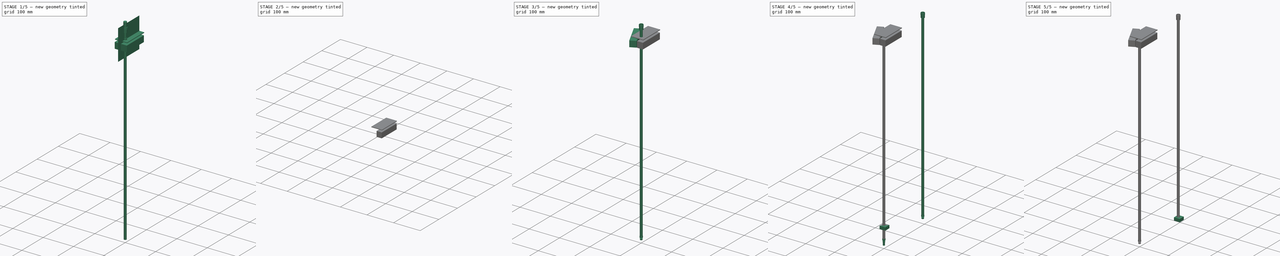
[diagram: build sequence overview — one tinted view per stage of 5, left to right]
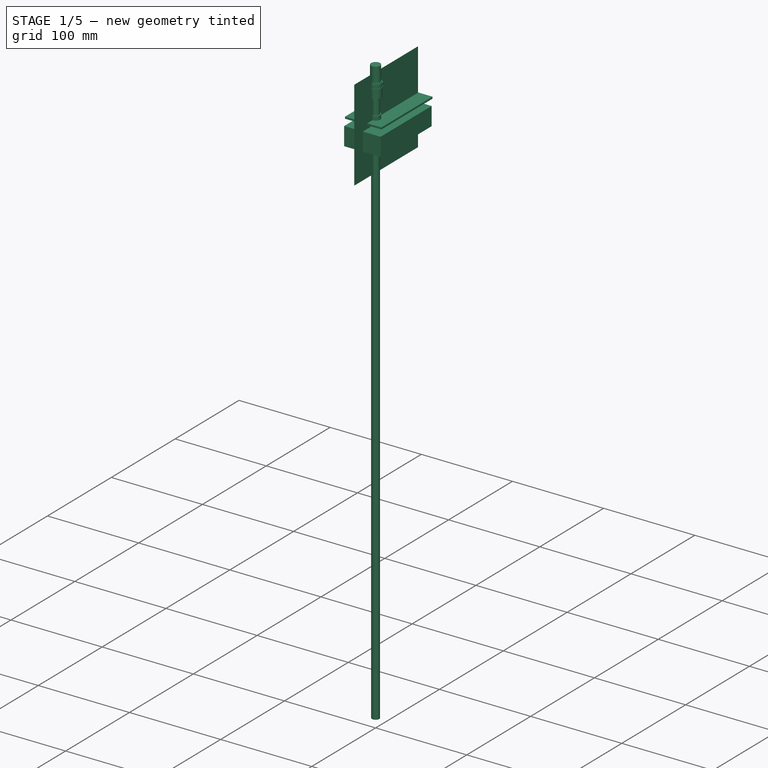
[diagram: stage 1 of 5 — iso view after this stage's code; geometry added in this stage tinted green]
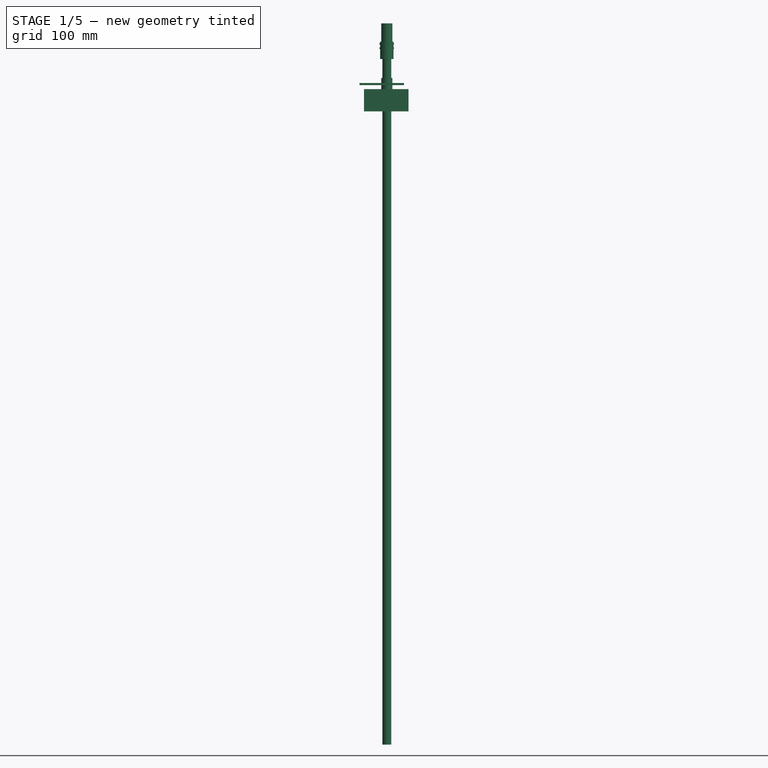
[diagram: stage 1 of 5 — front view after this stage's code; geometry added in this stage tinted green]
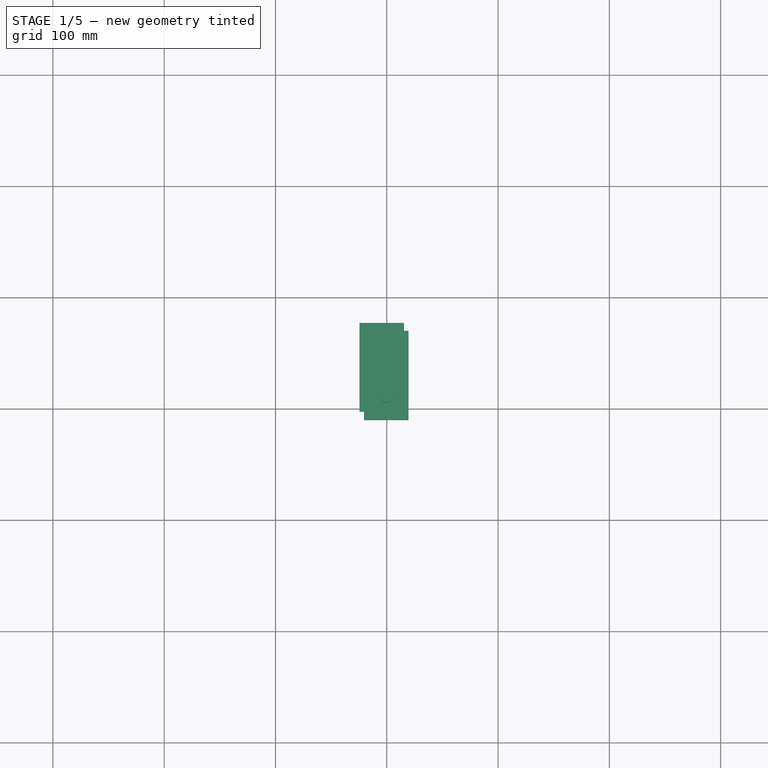
[diagram: stage 1 of 5 — top view after this stage's code; geometry added in this stage tinted green]
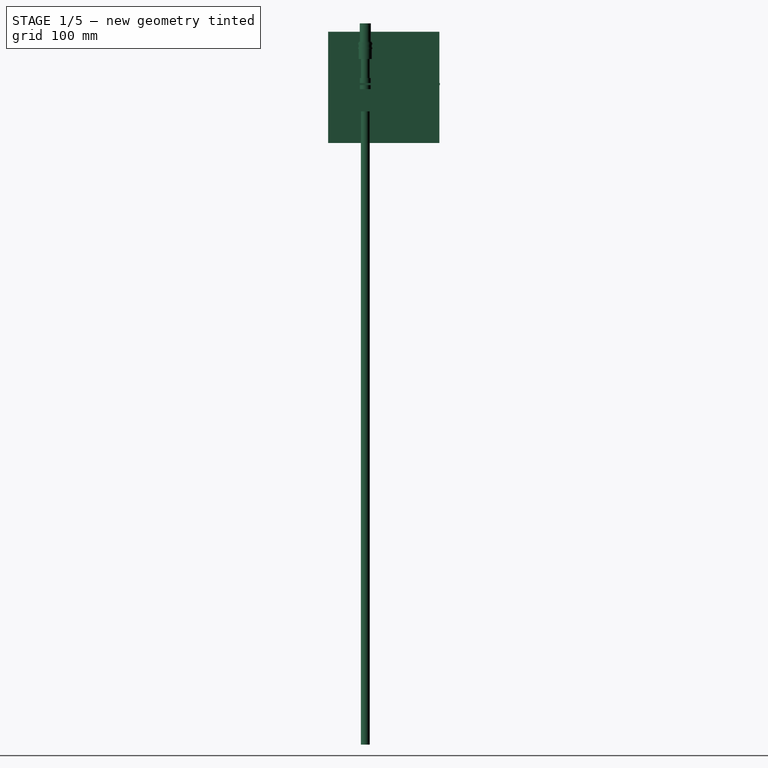
[diagram: stage 1 of 5 — right view after this stage's code; geometry added in this stage tinted green]
FCSTD DOCUMENT  (FreeCAD 0.19R19758 (Git))
Label: CherenkovStrawsConceptSupport
License: All rights reserved
LicenseURL: http://en.wikipedia.org/wiki/All_rights_reserved
objects: Part::Cylinder×12, Part::Cut×10, Sketcher::SketchObject×8, Part::Revolution×8, Part::MultiFuse×7, Part::Box×5, Part::FeaturePython×5, Part::Part2DObjectPython×2, Part::Sweep×1
note: 58 computed .brp shape members not serialized (recipe doc carries the construction recipe); baked Part::Feature solids carry a one-line shape summary decoded from their .brp

FEATURE [Sketcher::SketchObject] Sketch003
  Placement = pos=(0,0,0) rot=(0.57735,0.57735,0.57735;2.0944rad)
  sketch-geometry (20):
    g0: LineSegment StartX=0 StartY=0 StartZ=0 EndX=0 EndY=1 EndZ=0
    g1: LineSegment StartX=0 StartY=1 StartZ=0 EndX=-0.5 EndY=1 EndZ=0
    g2: LineSegment StartX=-0.5 StartY=1 StartZ=0 EndX=-0.5 EndY=2.5 EndZ=0
    g3: LineSegment StartX=-0.5 StartY=2.5 StartZ=0 EndX=0 EndY=2.5 EndZ=0
    g4: LineSegment StartX=0 StartY=2.5 StartZ=0 EndX=0 EndY=5 EndZ=0
    g5: LineSegment StartX=0 StartY=5 StartZ=0 EndX=-0.5 EndY=5 EndZ=0
    g6: LineSegment StartX=-0.5 StartY=5 StartZ=0 EndX=-0.5 EndY=6.5 EndZ=0
    g7: LineSegment StartX=-0.5 StartY=6.5 StartZ=0 EndX=0 EndY=6.5 EndZ=0
    g8: LineSegment StartX=0 StartY=6.5 StartZ=0 EndX=0 EndY=15.5 EndZ=0
    g9: LineSegment StartX=0 StartY=15.5 StartZ=0 EndX=6 EndY=15.5 EndZ=0
    g10: LineSegment StartX=6 StartY=15.5 StartZ=0 EndX=6 EndY=6.5 EndZ=0
    g11: LineSegment StartX=6 StartY=6.5 StartZ=0 EndX=6.5 EndY=6.5 EndZ=0
    g12: LineSegment StartX=6.5 StartY=6.5 StartZ=0 EndX=6.5 EndY=5 EndZ=0
    g13: LineSegment StartX=6.5 StartY=5 StartZ=0 EndX=6 EndY=5 EndZ=0
    g14: LineSegment StartX=6 StartY=5 StartZ=0 EndX=6 EndY=2.5 EndZ=0
    g15: LineSegment StartX=6 StartY=2.5 StartZ=0 EndX=6.5 EndY=2.5 EndZ=0
    g16: LineSegment StartX=6.5 StartY=2.5 StartZ=0 EndX=6.5 EndY=1 EndZ=0
    g17: LineSegment StartX=6.5 StartY=1 StartZ=0 EndX=6 EndY=1 EndZ=0
    g18: LineSegment StartX=6 StartY=1 StartZ=0 EndX=6 EndY=0 EndZ=0
    g19: LineSegment StartX=6 StartY=0 StartZ=0 EndX=0 EndY=0 EndZ=0
  constraints (59):
    c: Coincident(g-1,g0)
    c: Coincident(g0,g1)
    c: Coincident(g1,g2)
    c: Coincident(g2,g3)
    c: Coincident(g3,g4)
    c: Coincident(g4,g5)
    c: Coincident(g5,g6)
    c: Coincident(g6,g7)
    c: Coincident(g7,g8)
    c: PointOnObject(g8,g-2)
    c: Coincident(g8,g9)
    c: Coincident(g9,g10)
    c: Coincident(g10,g11)
    c: Coincident(g11,g12)
    c: Coincident(g12,g13)
    c: Coincident(g13,g14)
    c: Coincident(g14,g15)
    c: Coincident(g15,g16)
    c: Coincident(g16,g17)
    c: Coincident(g17,g18)
    c: Coincident(g18,g19)
    c: Coincident(g19,g0)
    c: Equal(g9,g19)
    c: Distance(g9) = 6
    c: Equal(g7,g11)
    c: Equal(g5,g7)
    c: Equal(g7,g13)
    c: Equal(g15,g7)
    c: Equal(g7,g1)
    c: Equal(g7,g17)
    c: Perpendicular(g7,g8)
    c: Perpendicular(g6,g7)
    c: Perpendicular(g5,g6)
    c: Perpendicular(g4,g5)
    c: Perpendicular(g3,g4)
    c: Perpendicular(g2,g3)
    c: Perpendicular(g1,g2)
    c: Perpendicular(g0,g1)
    c: Perpendicular(g19,g0)
    c: Perpendicular(g18,g19)
    c: Perpendicular(g17,g18)
    c: Perpendicular(g16,g17)
    c: Perpendicular(g15,g16)
    c: Perpendicular(g14,g15)
    c: Perpendicular(g13,g14)
    c: Perpendicular(g12,g13)
    c: Perpendicular(g11,g12)
    c: Perpendicular(g10,g11)
    c: Distance(g6,g11) = 7
    c: Equal(g10,g8)
    c: Equal(g12,g6)
    c: Equal(g4,g14)
    c: Equal(g2,g16)
    c: Equal(g0,g18)
    c: Distance(g10) = 9
    c: Distance(g12) = 1.5
    c: Distance(g16) = 1.5
    c: Distance(g14) = 2.5
    c: Distance(g18) = 1
FEATURE [Part::Cylinder] Cylinder002
  Angle = 360
  AttacherType = Attacher::AttachEngine3D
  Height = 620
  Radius = 4
FEATURE [Part::Cylinder] Cylinder003
  Angle = 360
  AttacherType = Attacher::AttachEngine3D
  Height = 30
  Placement = pos=(0,0,618) rot=(0,0,1;0rad)
  Radius = 5
FEATURE [Part::Revolution] Revolve003
  Angle = 360
  Axis = (0,0,1)
  Base = (0,0,0)
  FaceMakerClass = Part::FaceMakerBullseye
  Placement = pos=(0,7.7e-14,631.5) rot=(1,0,0;3.14159rad)
  Solid = true
  Source = -> Sketch003
  Symmetric = false
FEATURE [Part::Box] Box001  label="Cube001"
  AttacherType = Attacher::AttachEngine3D
  Height = 20
  Length = 40
  Placement = pos=(-20.5,-20,569) rot=(0,0,1;0rad)
  Width = 80
FEATURE [Part::Cylinder] Cylinder010
  Angle = 360
  AttacherType = Attacher::AttachEngine3D
  Height = 30
  Placement = pos=(0,0,569) rot=(0,0,1;0rad)
  Radius = 5
FEATURE [Part::Box] Box002  label="Cube002"
  AttacherType = Attacher::AttachEngine3D
  Height = 100
  Length = 0.01
  Placement = pos=(0,-33.5,540.5) rot=(0,0,1;0rad)
  Width = 100
FEATURE [Part::Part2DObjectPython] BezCurve002  # Draft 2D object (typed FeaturePython)
  Area = 0
  Closed = false
  Degree = 3
  Length = 187.102
  MakeFace = true
  Points = (4) [(132,211.222,62.3147),(48.4726,170.936,16),(-3,168.371,73.2821),(39.8276,100.957,78.5656)]
FEATURE [Part::Part2DObjectPython] Circle003  # Draft 2D object (typed FeaturePython)
  Area = 7.06858
  FirstAngle = 0
  LastAngle = 0
  MakeFace = true
  Placement = pos=(131.706,211.085,62.1705) rot=(-0.540873,0.659298,0.522286;3.71755rad)
  Radius = 1.5
FEATURE [Part::Sweep] Sweep003  label="CalibFiber3"
  Frenet = false
  Placement = pos=(118.055,42.3897,-224.587) rot=(0.445134,-0.567688,0.692521;1.15658rad)
  Sections = -> [Circle003]
  Solid = false
  Spine = -> BezCurve002 [Edge1]
  Transition = 1
FEATURE [Part::Box] Box008  label="SiPMPCB"
  AttacherType = Attacher::AttachEngine3D
  Height = 2
  Length = 40
  Placement = pos=(-24.5,-13,597.5) rot=(0,0,1;0rad)
  Width = 80
FEATURE [Part::Box] Box009  label="SiPMPCB001"
  AttacherType = Attacher::AttachEngine3D
  Height = 2
  Length = 3
  Placement = pos=(-1.5,-2,596.5) rot=(0,0,1;0rad)
  Width = 3
FEATURE [Part::MultiFuse] Fusion006  label="PCB"
  Placement = pos=(0,0,-5) rot=(0,0,1;0rad)
  Shapes = -> [Box009,Box008]
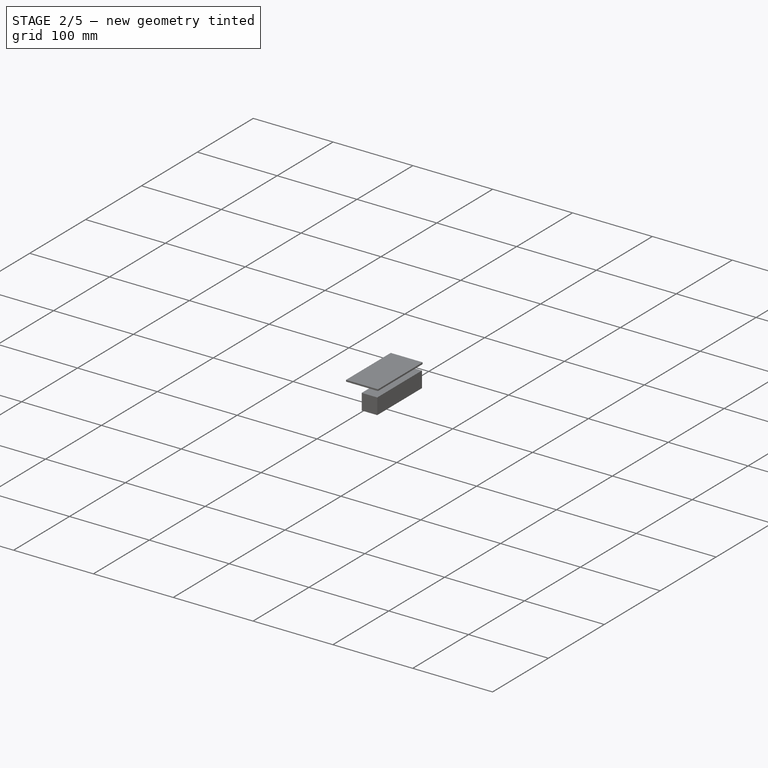
[diagram: stage 2 of 5 — iso view after this stage's code; geometry added in this stage tinted green]
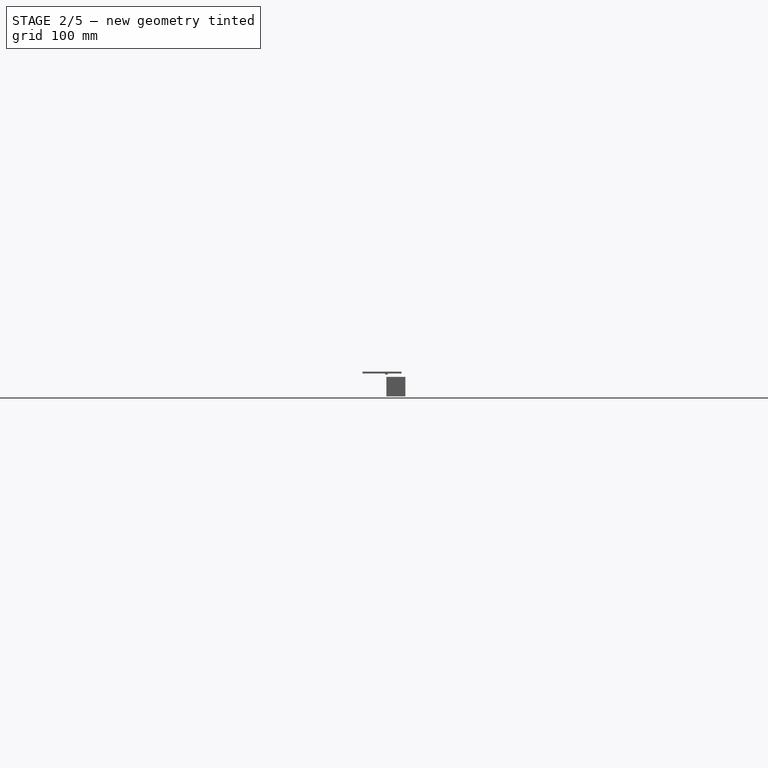
[diagram: stage 2 of 5 — front view after this stage's code; geometry added in this stage tinted green]
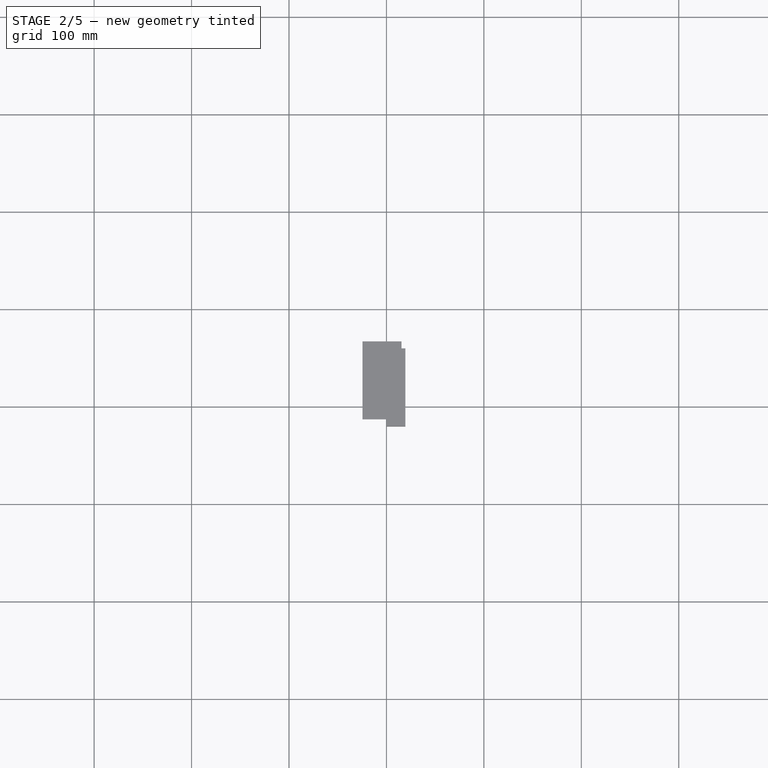
[diagram: stage 2 of 5 — top view after this stage's code; geometry added in this stage tinted green]
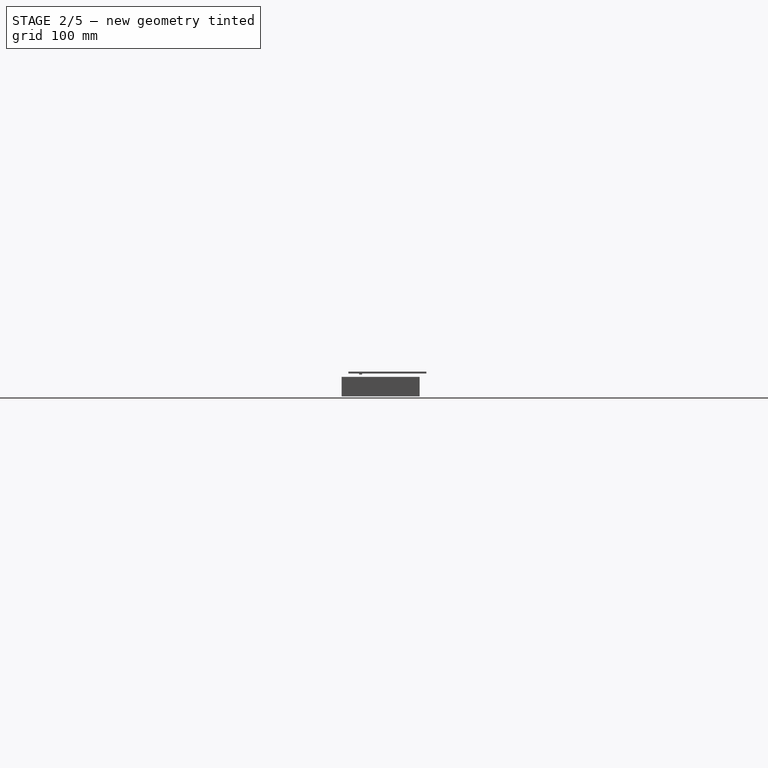
[diagram: stage 2 of 5 — right view after this stage's code; geometry added in this stage tinted green]
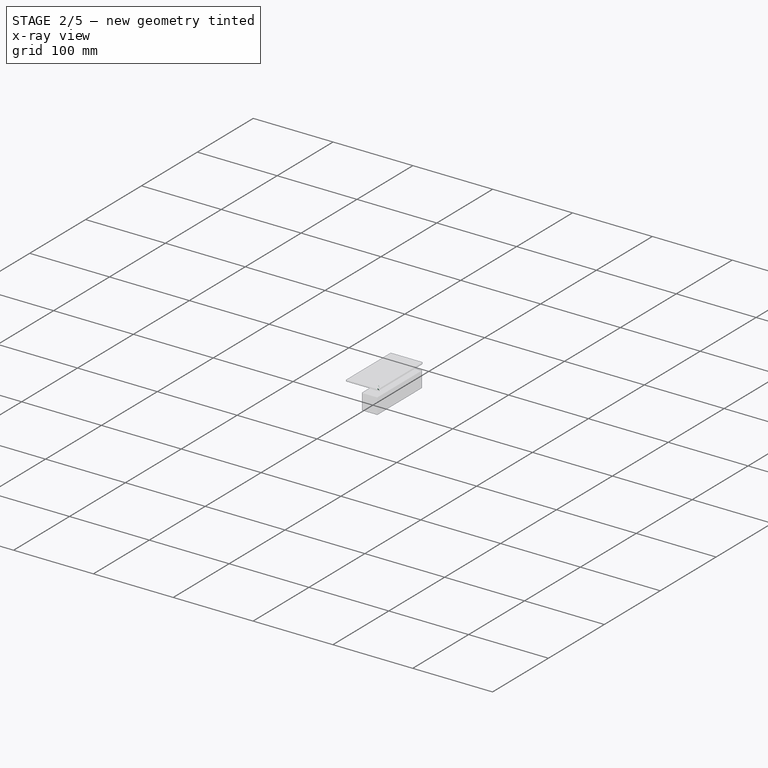
[diagram: stage 2 of 5 — x-ray composite at the iso view; earlier geometry ghosted, this stage's added geometry solid]
FEATURE [Sketcher::SketchObject] Sketch002
  Placement = pos=(0,0,0) rot=(1,0,0;1.5708rad)
  sketch-geometry (12):
    g0: LineSegment StartX=0 StartY=0 StartZ=0 EndX=0 EndY=4 EndZ=0
    g1: LineSegment StartX=0 StartY=4 StartZ=0 EndX=4 EndY=4 EndZ=0
    g2: LineSegment StartX=4 StartY=4 StartZ=0 EndX=4 EndY=7 EndZ=0
    g3: LineSegment StartX=4 StartY=7 StartZ=0 EndX=1 EndY=7 EndZ=0
    g4: LineSegment StartX=1 StartY=7 StartZ=0 EndX=1 EndY=11.5 EndZ=0
    g5: LineSegment StartX=1 StartY=11.5 StartZ=0 EndX=3.5 EndY=11.5 EndZ=0
    g6: LineSegment StartX=3.5 StartY=11.5 StartZ=0 EndX=3.5 EndY=7 EndZ=0
    g7: LineSegment StartX=3.5 StartY=7 StartZ=0 EndX=0.5 EndY=7 EndZ=0
    g8: LineSegment StartX=0.5 StartY=7 StartZ=0 EndX=0.5 EndY=4 EndZ=0
    g9: LineSegment StartX=0.5 StartY=4 StartZ=0 EndX=4.5 EndY=4 EndZ=0
    g10: LineSegment StartX=4.5 StartY=4 StartZ=0 EndX=4.5 EndY=0 EndZ=0
    g11: LineSegment StartX=4.5 StartY=0 StartZ=0 EndX=0 EndY=0 EndZ=0
  constraints (35):
    c: Coincident(g-1,g0)
    c: PointOnObject(g0,g-2)
    c: Coincident(g0,g1)
    c: Horizontal(g1)
    c: Coincident(g1,g2)
    c: Vertical(g2)
    c: Coincident(g2,g3)
    c: Horizontal(g3)
    c: Coincident(g3,g4)
    c: Vertical(g4)
    c: Coincident(g4,g5)
    c: Horizontal(g5)
    c: Coincident(g5,g6)
    c: Coincident(g6,g7)
    c: Coincident(g7,g8)
    c: Vertical(g8)
    c: Coincident(g8,g9)
    c: Horizontal(g9)
    c: Coincident(g9,g10)
    c: PointOnObject(g10,g-1)
    c: Vertical(g10)
    c: Coincident(g10,g11)
    c: Coincident(g11,g0)
    c: Equal(g3,g7)
    c: Equal(g1,g9)
    c: Equal(g10,g0)
    c: Equal(g8,g2)
    c: Equal(g4,g6)
    c: Parallel(g4,g6)
    c: Distance(g5) = 2.5
    c: Distance(g2,g7) = 3.5
    c: Distance(g0,g9) = 4.5
    c: Distance(g6) = 4.5
    c: Distance(g2) = 3
    c: Distance(g10) = 4
FEATURE [Part::Revolution] Revolve002
  Angle = 360
  Axis = (0,0,1)
  Base = (0,0,0)
  FaceMakerClass = Part::FaceMakerBullseye
  Placement = pos=(0,0,0) rot=(0,1,0;3.14159rad)
  Solid = true
  Source = -> Sketch002
  Symmetric = false
FEATURE [Part::Cut] Cut001
  Base = -> Revolve003
  Tool = -> Cylinder003
FEATURE [Part::MultiFuse] Fusion001  label="Straw001"
  Placement = pos=(0,0,-42) rot=(0,0,1;0rad)
  Shapes = -> [Cut001,Cylinder002,Revolve002]
FEATURE [Part::Cut] Cut007
  Base = -> Box001
  Tool = -> Fusion001
FEATURE [Part::Cylinder] Cylinder011
  Angle = 360
  AttacherType = Attacher::AttachEngine3D
  Height = 30
  Placement = pos=(0,0,569) rot=(0,0,1;0rad)
  Radius = 5
FEATURE [Part::Cut] Cut008
  Base = -> Cut007
  Tool = -> Cylinder010
FEATURE [Part::Cut] Cut009
  Base = -> Cut008
  Tool = -> Cylinder011
FEATURE [Part::FeaturePython] Slice  # WARN: FeaturePython — macro-defined, semantics opaque (R4)
  Base = -> Cut009
  Mode = 1
  Tolerance = 0
  Tools = -> [Box002]
FEATURE [Part::FeaturePython] Slice_child3  label="Slice.3"  # WARN: FeaturePython — macro-defined, semantics opaque (R4)
  Base = -> Slice
  FilterType = 1
  Invert = false
  OverrideMaxVal = 0
  WindowFrom = 80
  WindowTo = 100
  items = 3
FEATURE [Part::FeaturePython] Slice_child2  label="Slice.2"  # WARN: FeaturePython — macro-defined, semantics opaque (R4)
  Base = -> Slice
  FilterType = 1
  Invert = false
  OverrideMaxVal = 0
  WindowFrom = 80
  WindowTo = 100
  items = 2
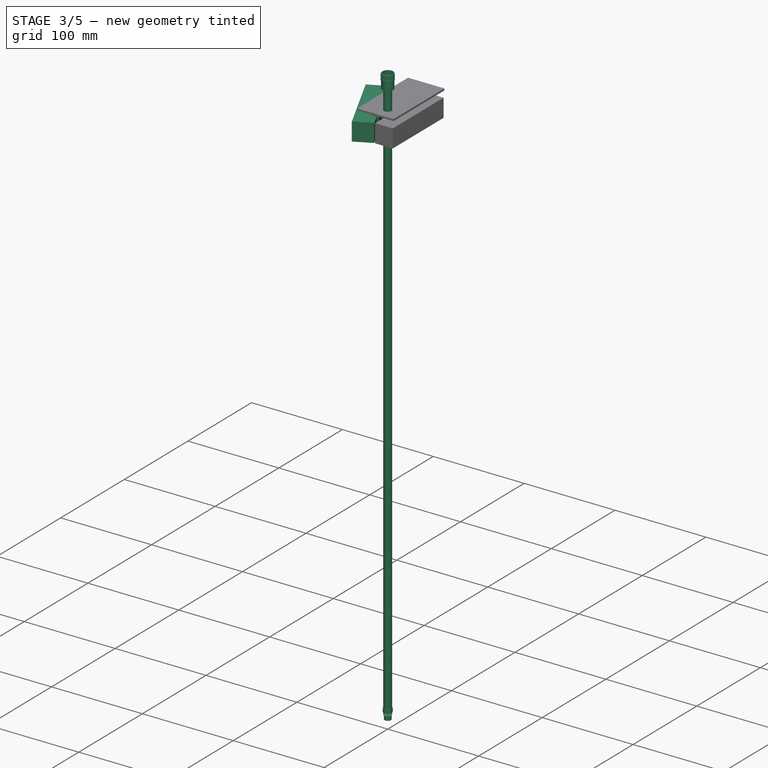
[diagram: stage 3 of 5 — iso view after this stage's code; geometry added in this stage tinted green]
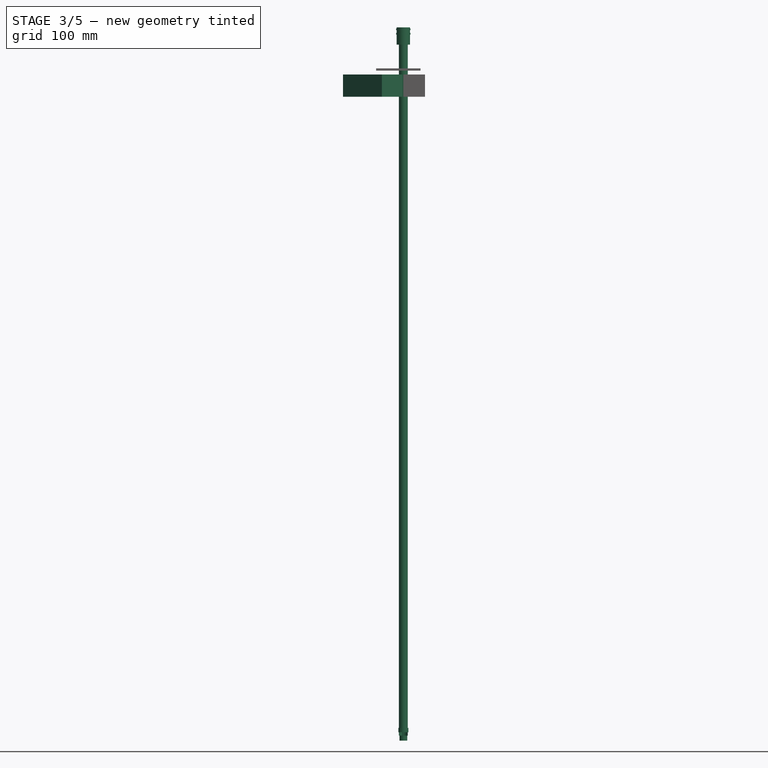
[diagram: stage 3 of 5 — front view after this stage's code; geometry added in this stage tinted green]
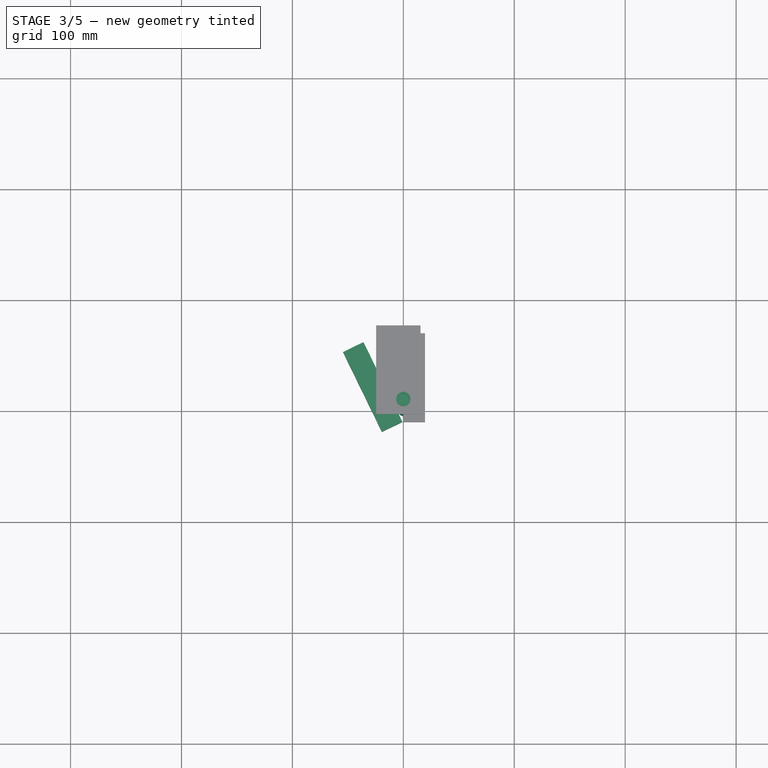
[diagram: stage 3 of 5 — top view after this stage's code; geometry added in this stage tinted green]
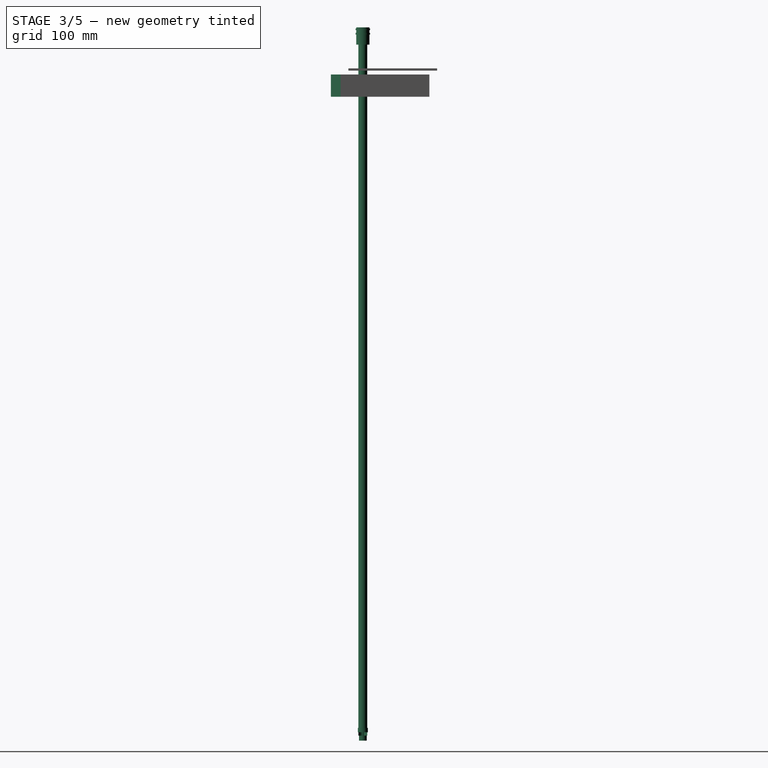
[diagram: stage 3 of 5 — right view after this stage's code; geometry added in this stage tinted green]
FEATURE [Part::Cylinder] Cylinder008
  Angle = 360
  AttacherType = Attacher::AttachEngine3D
  Height = 620
  Radius = 4
FEATURE [Part::Cylinder] Cylinder009
  Angle = 360
  AttacherType = Attacher::AttachEngine3D
  Height = 30
  Placement = pos=(0,0,618) rot=(0,0,1;0rad)
  Radius = 5
FEATURE [Sketcher::SketchObject] Sketch006
  Placement = pos=(0,0,0) rot=(1,0,0;1.5708rad)
  sketch-geometry (12):
    g0: LineSegment StartX=0 StartY=0 StartZ=0 EndX=0 EndY=4 EndZ=0
    g1: LineSegment StartX=0 StartY=4 StartZ=0 EndX=4 EndY=4 EndZ=0
    g2: LineSegment StartX=4 StartY=4 StartZ=0 EndX=4 EndY=7 EndZ=0
    g3: LineSegment StartX=4 StartY=7 StartZ=0 EndX=1 EndY=7 EndZ=0
    g4: LineSegment StartX=1 StartY=7 StartZ=0 EndX=1 EndY=11.5 EndZ=0
    g5: LineSegment StartX=1 StartY=11.5 StartZ=0 EndX=3.5 EndY=11.5 EndZ=0
    g6: LineSegment StartX=3.5 StartY=11.5 StartZ=0 EndX=3.5 EndY=7 EndZ=0
    g7: LineSegment StartX=3.5 StartY=7 StartZ=0 EndX=0.5 EndY=7 EndZ=0
    g8: LineSegment StartX=0.5 StartY=7 StartZ=0 EndX=0.5 EndY=4 EndZ=0
    g9: LineSegment StartX=0.5 StartY=4 StartZ=0 EndX=4.5 EndY=4 EndZ=0
    g10: LineSegment StartX=4.5 StartY=4 StartZ=0 EndX=4.5 EndY=0 EndZ=0
    g11: LineSegment StartX=4.5 StartY=0 StartZ=0 EndX=0 EndY=0 EndZ=0
  constraints (35):
    c: Coincident(g-1,g0)
    c: PointOnObject(g0,g-2)
    c: Coincident(g0,g1)
    c: Horizontal(g1)
    c: Coincident(g1,g2)
    c: Vertical(g2)
    c: Coincident(g2,g3)
    c: Horizontal(g3)
    c: Coincident(g3,g4)
    c: Vertical(g4)
    c: Coincident(g4,g5)
    c: Horizontal(g5)
    c: Coincident(g5,g6)
    c: Coincident(g6,g7)
    c: Coincident(g7,g8)
    c: Vertical(g8)
    c: Coincident(g8,g9)
    c: Horizontal(g9)
    c: Coincident(g9,g10)
    c: PointOnObject(g10,g-1)
    c: Vertical(g10)
    c: Coincident(g10,g11)
    c: Coincident(g11,g0)
    c: Equal(g3,g7)
    c: Equal(g1,g9)
    c: Equal(g10,g0)
    c: Equal(g8,g2)
    c: Equal(g4,g6)
    c: Parallel(g4,g6)
    c: Distance(g5) = 2.5
    c: Distance(g2,g7) = 3.5
    c: Distance(g0,g9) = 4.5
    c: Distance(g6) = 4.5
    c: Distance(g2) = 3
    c: Distance(g10) = 4
FEATURE [Sketcher::SketchObject] Sketch007
  Placement = pos=(0,0,0) rot=(0.57735,0.57735,0.57735;2.0944rad)
  sketch-geometry (20):
    g0: LineSegment StartX=0 StartY=0 StartZ=0 EndX=0 EndY=1 EndZ=0
    g1: LineSegment StartX=0 StartY=1 StartZ=0 EndX=-0.5 EndY=1 EndZ=0
    g2: LineSegment StartX=-0.5 StartY=1 StartZ=0 EndX=-0.5 EndY=2.5 EndZ=0
    g3: LineSegment StartX=-0.5 StartY=2.5 StartZ=0 EndX=0 EndY=2.5 EndZ=0
    g4: LineSegment StartX=0 StartY=2.5 StartZ=0 EndX=0 EndY=5 EndZ=0
    g5: LineSegment StartX=0 StartY=5 StartZ=0 EndX=-0.5 EndY=5 EndZ=0
    g6: LineSegment StartX=-0.5 StartY=5 StartZ=0 EndX=-0.5 EndY=6.5 EndZ=0
    g7: LineSegment StartX=-0.5 StartY=6.5 StartZ=0 EndX=0 EndY=6.5 EndZ=0
    g8: LineSegment StartX=0 StartY=6.5 StartZ=0 EndX=0 EndY=15.5 EndZ=0
    g9: LineSegment StartX=0 StartY=15.5 StartZ=0 EndX=6 EndY=15.5 EndZ=0
    g10: LineSegment StartX=6 StartY=15.5 StartZ=0 EndX=6 EndY=6.5 EndZ=0
    g11: LineSegment StartX=6 StartY=6.5 StartZ=0 EndX=6.5 EndY=6.5 EndZ=0
    g12: LineSegment StartX=6.5 StartY=6.5 StartZ=0 EndX=6.5 EndY=5 EndZ=0
    g13: LineSegment StartX=6.5 StartY=5 StartZ=0 EndX=6 EndY=5 EndZ=0
    g14: LineSegment StartX=6 StartY=5 StartZ=0 EndX=6 EndY=2.5 EndZ=0
    g15: LineSegment StartX=6 StartY=2.5 StartZ=0 EndX=6.5 EndY=2.5 EndZ=0
    g16: LineSegment StartX=6.5 StartY=2.5 StartZ=0 EndX=6.5 EndY=1 EndZ=0
    g17: LineSegment StartX=6.5 StartY=1 StartZ=0 EndX=6 EndY=1 EndZ=0
    g18: LineSegment StartX=6 StartY=1 StartZ=0 EndX=6 EndY=0 EndZ=0
    g19: LineSegment StartX=6 StartY=0 StartZ=0 EndX=0 EndY=0 EndZ=0
  constraints (59):
    c: Coincident(g-1,g0)
    c: Coincident(g0,g1)
    c: Coincident(g1,g2)
    c: Coincident(g2,g3)
    c: Coincident(g3,g4)
    c: Coincident(g4,g5)
    c: Coincident(g5,g6)
    c: Coincident(g6,g7)
    c: Coincident(g7,g8)
    c: PointOnObject(g8,g-2)
    c: Coincident(g8,g9)
    c: Coincident(g9,g10)
    c: Coincident(g10,g11)
    c: Coincident(g11,g12)
    c: Coincident(g12,g13)
    c: Coincident(g13,g14)
    c: Coincident(g14,g15)
    c: Coincident(g15,g16)
    c: Coincident(g16,g17)
    c: Coincident(g17,g18)
    c: Coincident(g18,g19)
    c: Coincident(g19,g0)
    c: Equal(g9,g19)
    c: Distance(g9) = 6
    c: Equal(g7,g11)
    c: Equal(g5,g7)
    c: Equal(g7,g13)
    c: Equal(g15,g7)
    c: Equal(g7,g1)
    c: Equal(g7,g17)
    c: Perpendicular(g7,g8)
    c: Perpendicular(g6,g7)
    c: Perpendicular(g5,g6)
    c: Perpendicular(g4,g5)
    c: Perpendicular(g3,g4)
    c: Perpendicular(g2,g3)
    c: Perpendicular(g1,g2)
    c: Perpendicular(g0,g1)
    c: Perpendicular(g19,g0)
    c: Perpendicular(g18,g19)
    c: Perpendicular(g17,g18)
    c: Perpendicular(g16,g17)
    c: Perpendicular(g15,g16)
    c: Perpendicular(g14,g15)
    c: Perpendicular(g13,g14)
    c: Perpendicular(g12,g13)
    c: Perpendicular(g11,g12)
    c: Perpendicular(g10,g11)
    c: Distance(g6,g11) = 7
    c: Equal(g10,g8)
    c: Equal(g12,g6)
    c: Equal(g4,g14)
    c: Equal(g2,g16)
    c: Equal(g0,g18)
    c: Distance(g10) = 9
    c: Distance(g12) = 1.5
    c: Distance(g16) = 1.5
    c: Distance(g14) = 2.5
    c: Distance(g18) = 1
FEATURE [Part::Revolution] Revolve006
  Angle = 360
  Axis = (0,0,1)
  Base = (0,0,0)
  FaceMakerClass = Part::FaceMakerBullseye
  Placement = pos=(0,0,0) rot=(0,1,0;3.14159rad)
  Solid = true
  Source = -> Sketch006
  Symmetric = false
FEATURE [Part::Revolution] Revolve007
  Angle = 360
  Axis = (0,0,1)
  Base = (0,0,0)
  FaceMakerClass = Part::FaceMakerBullseye
  Placement = pos=(0,7.7e-14,631.5) rot=(1,0,0;3.14159rad)
  Solid = true
  Source = -> Sketch007
  Symmetric = false
FEATURE [Part::Cut] Cut006
  Base = -> Revolve007
  Tool = -> Cylinder009
FEATURE [Part::FeaturePython] Slice_child0  label="Slice.0"  # WARN: FeaturePython — macro-defined, semantics opaque (R4)
  Base = -> Slice
  FilterType = 1
  Invert = false
  OverrideMaxVal = 0
  WindowFrom = 80
  WindowTo = 100
  items = 0
FEATURE [Part::FeaturePython] Slice_child1  label="Slice.1"  # WARN: FeaturePython — macro-defined, semantics opaque (R4)
  Base = -> Slice
  FilterType = 1
  Invert = false
  OverrideMaxVal = 0
  WindowFrom = 80
  WindowTo = 100
  items = 1
FEATURE [Part::MultiFuse] Fusion004  label="UpperStructure1"
  Placement = pos=(-9.63447,-1.91754,0) rot=(0,0,1;0.453786rad)
  Shapes = -> [Slice_child0,Slice_child1]
FEATURE [Part::MultiFuse] Fusion005  label="UpperStructure2"
  Shapes = -> [Slice_child3,Slice_child2]
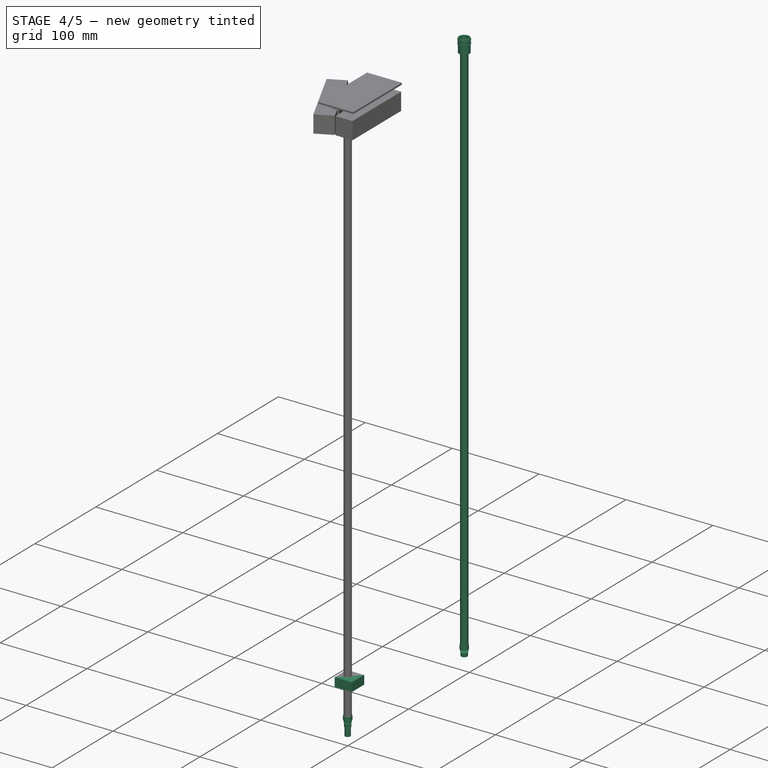
[diagram: stage 4 of 5 — iso view after this stage's code; geometry added in this stage tinted green]
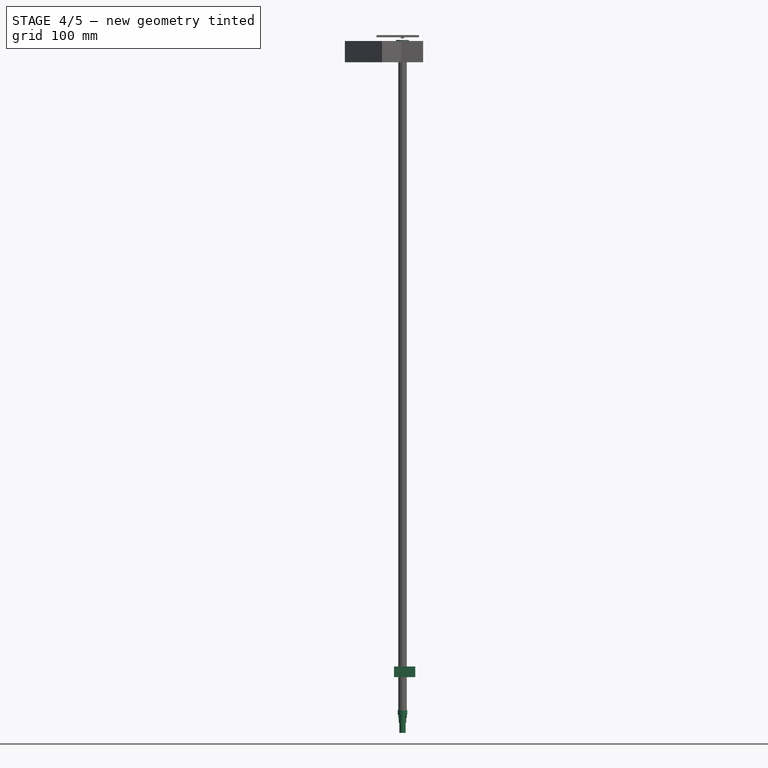
[diagram: stage 4 of 5 — front view after this stage's code; geometry added in this stage tinted green]
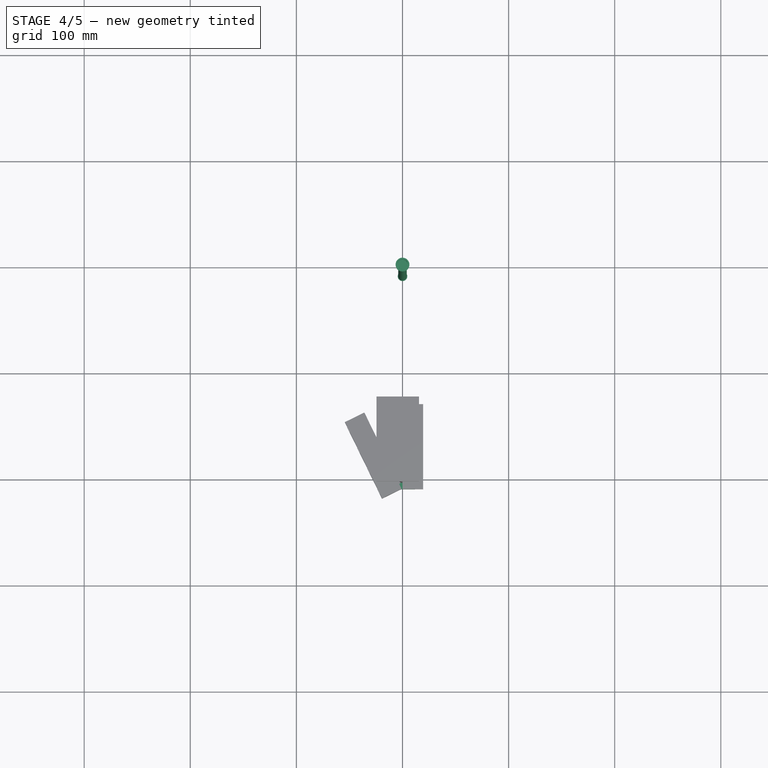
[diagram: stage 4 of 5 — top view after this stage's code; geometry added in this stage tinted green]
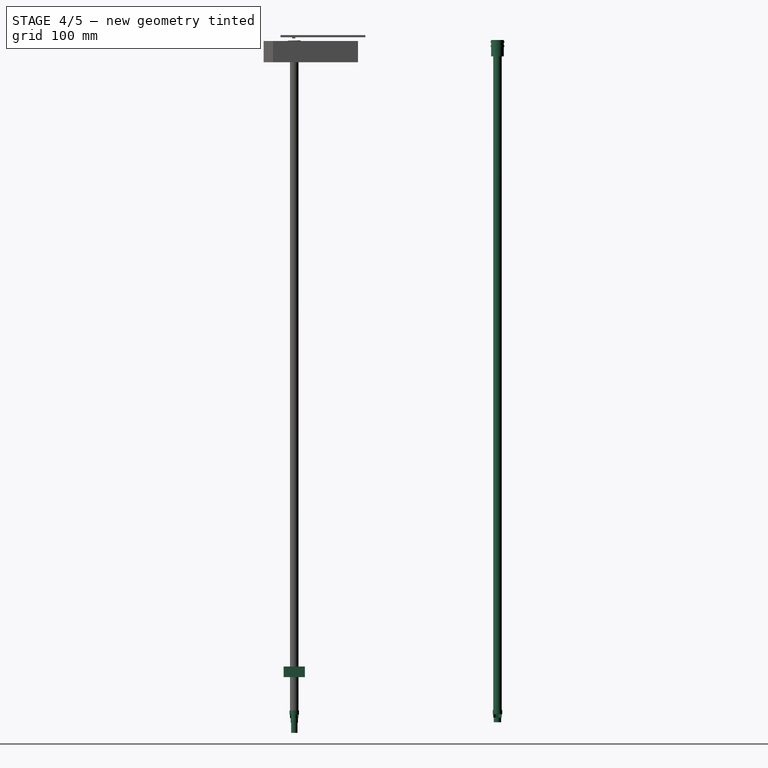
[diagram: stage 4 of 5 — right view after this stage's code; geometry added in this stage tinted green]
FEATURE [Part::Box] Box  label="Cube"
  AttacherType = Attacher::AttachEngine3D
  Height = 10
  Length = 20
  Placement = pos=(-8,-10,-10.5) rot=(0,0,1;0rad)
  Width = 20
FEATURE [Part::Cylinder] Cylinder004
  Angle = 360
  AttacherType = Attacher::AttachEngine3D
  Height = 20
  Placement = pos=(0,0,-63) rot=(0,0,1;0rad)
  Radius = 3
FEATURE [Part::Cylinder] Cylinder005
  Angle = 360
  AttacherType = Attacher::AttachEngine3D
  Height = 20
  Placement = pos=(0,0,-63) rot=(0,0,1;0rad)
  Radius = 3
FEATURE [Part::Cylinder] Cylinder006
  Angle = 360
  AttacherType = Attacher::AttachEngine3D
  Height = 620
  Radius = 4
FEATURE [Part::Cylinder] Cylinder007
  Angle = 360
  AttacherType = Attacher::AttachEngine3D
  Height = 30
  Placement = pos=(0,0,618) rot=(0,0,1;0rad)
  Radius = 5
FEATURE [Sketcher::SketchObject] Sketch004
  Placement = pos=(0,0,0) rot=(1,0,0;1.5708rad)
  sketch-geometry (12):
    g0: LineSegment StartX=0 StartY=0 StartZ=0 EndX=0 EndY=4 EndZ=0
    g1: LineSegment StartX=0 StartY=4 StartZ=0 EndX=4 EndY=4 EndZ=0
    g2: LineSegment StartX=4 StartY=4 StartZ=0 EndX=4 EndY=7 EndZ=0
    g3: LineSegment StartX=4 StartY=7 StartZ=0 EndX=1 EndY=7 EndZ=0
    g4: LineSegment StartX=1 StartY=7 StartZ=0 EndX=1 EndY=11.5 EndZ=0
    g5: LineSegment StartX=1 StartY=11.5 StartZ=0 EndX=3.5 EndY=11.5 EndZ=0
    g6: LineSegment StartX=3.5 StartY=11.5 StartZ=0 EndX=3.5 EndY=7 EndZ=0
    g7: LineSegment StartX=3.5 StartY=7 StartZ=0 EndX=0.5 EndY=7 EndZ=0
    g8: LineSegment StartX=0.5 StartY=7 StartZ=0 EndX=0.5 EndY=4 EndZ=0
    g9: LineSegment StartX=0.5 StartY=4 StartZ=0 EndX=4.5 EndY=4 EndZ=0
    g10: LineSegment StartX=4.5 StartY=4 StartZ=0 EndX=4.5 EndY=0 EndZ=0
    g11: LineSegment StartX=4.5 StartY=0 StartZ=0 EndX=0 EndY=0 EndZ=0
  constraints (35):
    c: Coincident(g-1,g0)
    c: PointOnObject(g0,g-2)
    c: Coincident(g0,g1)
    c: Horizontal(g1)
    c: Coincident(g1,g2)
    c: Vertical(g2)
    c: Coincident(g2,g3)
    c: Horizontal(g3)
    c: Coincident(g3,g4)
    c: Vertical(g4)
    c: Coincident(g4,g5)
    c: Horizontal(g5)
    c: Coincident(g5,g6)
    c: Coincident(g6,g7)
    c: Coincident(g7,g8)
    c: Vertical(g8)
    c: Coincident(g8,g9)
    c: Horizontal(g9)
    c: Coincident(g9,g10)
    c: PointOnObject(g10,g-1)
    c: Vertical(g10)
    c: Coincident(g10,g11)
    c: Coincident(g11,g0)
    c: Equal(g3,g7)
    c: Equal(g1,g9)
    c: Equal(g10,g0)
    c: Equal(g8,g2)
    c: Equal(g4,g6)
    c: Parallel(g4,g6)
    c: Distance(g5) = 2.5
    c: Distance(g2,g7) = 3.5
    c: Distance(g0,g9) = 4.5
    c: Distance(g6) = 4.5
    c: Distance(g2) = 3
    c: Distance(g10) = 4
FEATURE [Sketcher::SketchObject] Sketch005
  Placement = pos=(0,0,0) rot=(0.57735,0.57735,0.57735;2.0944rad)
  sketch-geometry (20):
    g0: LineSegment StartX=0 StartY=0 StartZ=0 EndX=0 EndY=1 EndZ=0
    g1: LineSegment StartX=0 StartY=1 StartZ=0 EndX=-0.5 EndY=1 EndZ=0
    g2: LineSegment StartX=-0.5 StartY=1 StartZ=0 EndX=-0.5 EndY=2.5 EndZ=0
    g3: LineSegment StartX=-0.5 StartY=2.5 StartZ=0 EndX=0 EndY=2.5 EndZ=0
    g4: LineSegment StartX=0 StartY=2.5 StartZ=0 EndX=0 EndY=5 EndZ=0
    g5: LineSegment StartX=0 StartY=5 StartZ=0 EndX=-0.5 EndY=5 EndZ=0
    g6: LineSegment StartX=-0.5 StartY=5 StartZ=0 EndX=-0.5 EndY=6.5 EndZ=0
    g7: LineSegment StartX=-0.5 StartY=6.5 StartZ=0 EndX=0 EndY=6.5 EndZ=0
    g8: LineSegment StartX=0 StartY=6.5 StartZ=0 EndX=0 EndY=15.5 EndZ=0
    g9: LineSegment StartX=0 StartY=15.5 StartZ=0 EndX=6 EndY=15.5 EndZ=0
    g10: LineSegment StartX=6 StartY=15.5 StartZ=0 EndX=6 EndY=6.5 EndZ=0
    g11: LineSegment StartX=6 StartY=6.5 StartZ=0 EndX=6.5 EndY=6.5 EndZ=0
    g12: LineSegment StartX=6.5 StartY=6.5 StartZ=0 EndX=6.5 EndY=5 EndZ=0
    g13: LineSegment StartX=6.5 StartY=5 StartZ=0 EndX=6 EndY=5 EndZ=0
    g14: LineSegment StartX=6 StartY=5 StartZ=0 EndX=6 EndY=2.5 EndZ=0
    g15: LineSegment StartX=6 StartY=2.5 StartZ=0 EndX=6.5 EndY=2.5 EndZ=0
    g16: LineSegment StartX=6.5 StartY=2.5 StartZ=0 EndX=6.5 EndY=1 EndZ=0
    g17: LineSegment StartX=6.5 StartY=1 StartZ=0 EndX=6 EndY=1 EndZ=0
    g18: LineSegment StartX=6 StartY=1 StartZ=0 EndX=6 EndY=0 EndZ=0
    g19: LineSegment StartX=6 StartY=0 StartZ=0 EndX=0 EndY=0 EndZ=0
  constraints (59):
    c: Coincident(g-1,g0)
    c: Coincident(g0,g1)
    c: Coincident(g1,g2)
    c: Coincident(g2,g3)
    c: Coincident(g3,g4)
    c: Coincident(g4,g5)
    c: Coincident(g5,g6)
    c: Coincident(g6,g7)
    c: Coincident(g7,g8)
    c: PointOnObject(g8,g-2)
    c: Coincident(g8,g9)
    c: Coincident(g9,g10)
    c: Coincident(g10,g11)
    c: Coincident(g11,g12)
    c: Coincident(g12,g13)
    c: Coincident(g13,g14)
    c: Coincident(g14,g15)
    c: Coincident(g15,g16)
    c: Coincident(g16,g17)
    c: Coincident(g17,g18)
    c: Coincident(g18,g19)
    c: Coincident(g19,g0)
    c: Equal(g9,g19)
    c: Distance(g9) = 6
    c: Equal(g7,g11)
    c: Equal(g5,g7)
    c: Equal(g7,g13)
    c: Equal(g15,g7)
    c: Equal(g7,g1)
    c: Equal(g7,g17)
    c: Perpendicular(g7,g8)
    c: Perpendicular(g6,g7)
    c: Perpendicular(g5,g6)
    c: Perpendicular(g4,g5)
    c: Perpendicular(g3,g4)
    c: Perpendicular(g2,g3)
    c: Perpendicular(g1,g2)
    c: Perpendicular(g0,g1)
    c: Perpendicular(g19,g0)
    c: Perpendicular(g18,g19)
    c: Perpendicular(g17,g18)
    c: Perpendicular(g16,g17)
    c: Perpendicular(g15,g16)
    c: Perpendicular(g14,g15)
    c: Perpendicular(g13,g14)
    c: Perpendicular(g12,g13)
    c: Perpendicular(g11,g12)
    c: Perpendicular(g10,g11)
    c: Distance(g6,g11) = 7
    c: Equal(g10,g8)
    c: Equal(g12,g6)
    c: Equal(g4,g14)
    c: Equal(g2,g16)
    c: Equal(g0,g18)
    c: Distance(g10) = 9
    c: Distance(g12) = 1.5
    c: Distance(g16) = 1.5
    c: Distance(g14) = 2.5
    c: Distance(g18) = 1
FEATURE [Part::Revolution] Revolve004
  Angle = 360
  Axis = (0,0,1)
  Base = (0,0,0)
  FaceMakerClass = Part::FaceMakerBullseye
  Placement = pos=(0,0,0) rot=(0,1,0;3.14159rad)
  Solid = true
  Source = -> Sketch004
  Symmetric = false
FEATURE [Part::Revolution] Revolve005
  Angle = 360
  Axis = (0,0,1)
  Base = (0,0,0)
  FaceMakerClass = Part::FaceMakerBullseye
  Placement = pos=(0,7.7e-14,631.5) rot=(1,0,0;3.14159rad)
  Solid = true
  Source = -> Sketch005
  Symmetric = false
FEATURE [Part::Cut] Cut005
  Base = -> Revolve005
  Tool = -> Cylinder007
FEATURE [Part::MultiFuse] Fusion002  label="Straw002"
  Placement = pos=(0,191.5,-41.53) rot=(0,0,1;0rad)
  Shapes = -> [Cut005,Cylinder006,Revolve004]
FEATURE [Part::MultiFuse] Fusion003  label="Straw003"
  Placement = pos=(0,0,-42) rot=(0,0,1;0rad)
  Shapes = -> [Cut006,Cylinder008,Revolve006]
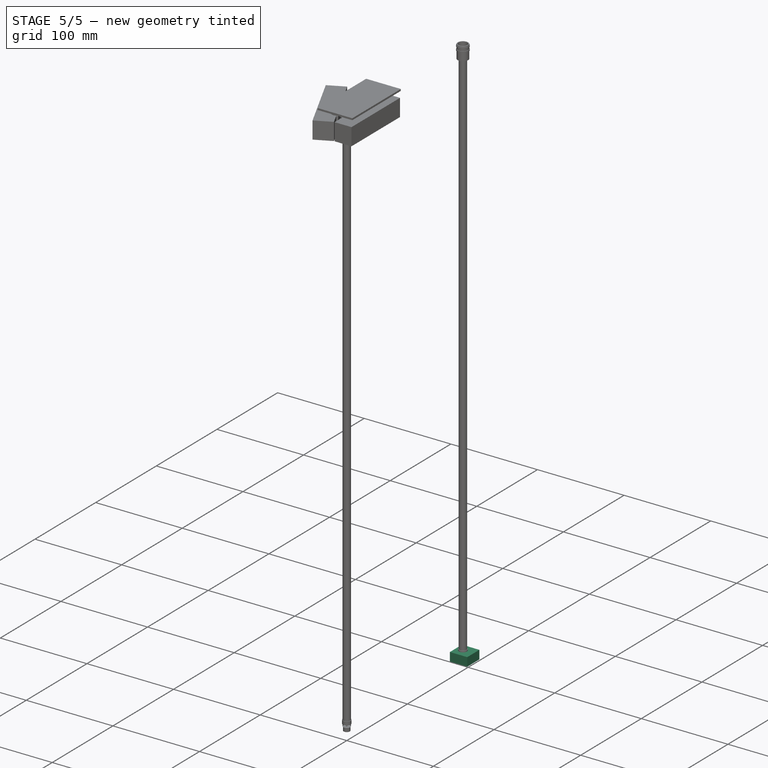
[diagram: stage 5 of 5 — iso view after this stage's code; geometry added in this stage tinted green]
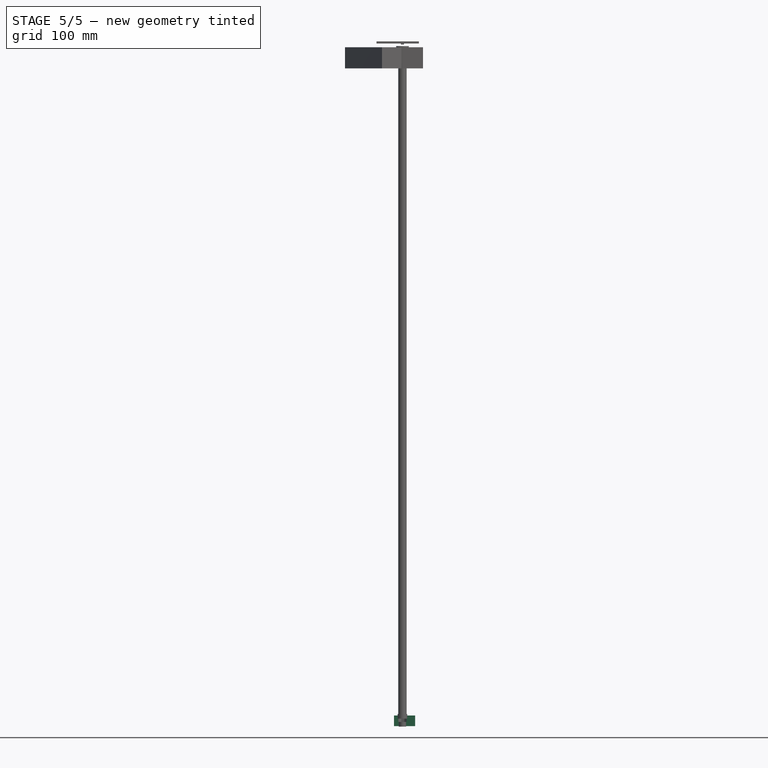
[diagram: stage 5 of 5 — front view after this stage's code; geometry added in this stage tinted green]
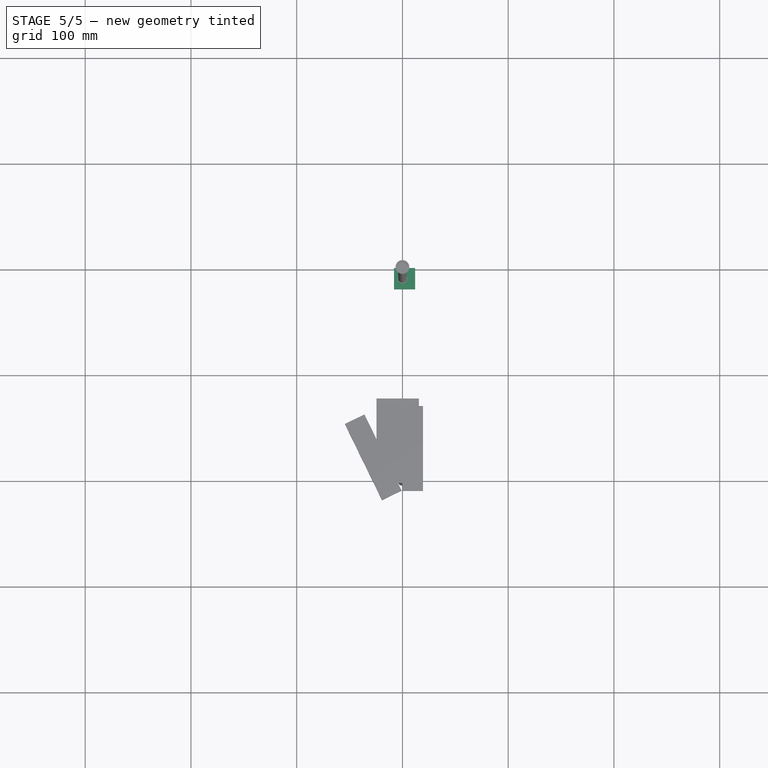
[diagram: stage 5 of 5 — top view after this stage's code; geometry added in this stage tinted green]
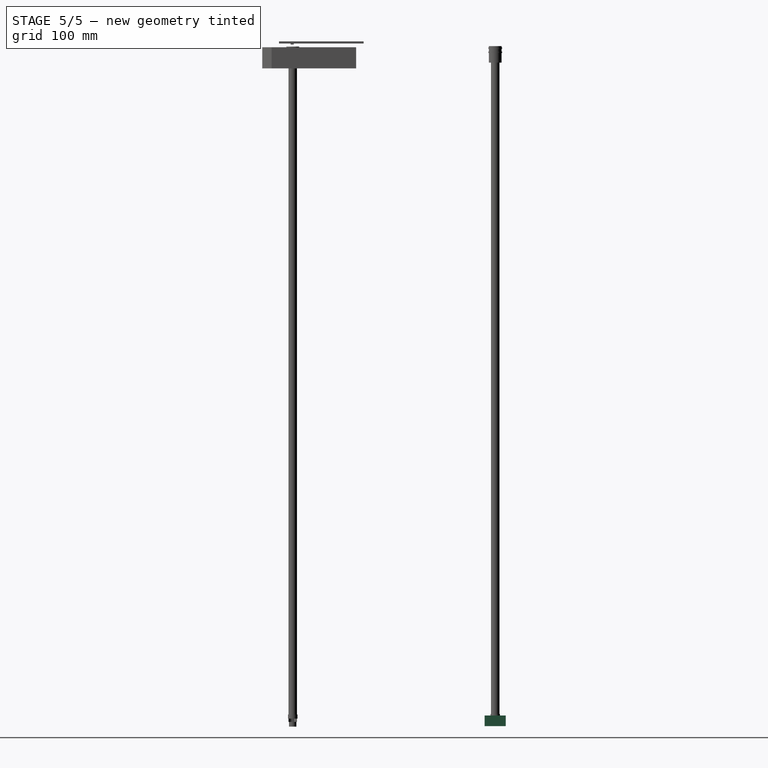
[diagram: stage 5 of 5 — right view after this stage's code; geometry added in this stage tinted green]
FEATURE [Sketcher::SketchObject] Sketch
  Placement = pos=(0,0,0) rot=(1,0,0;1.5708rad)
  sketch-geometry (12):
    g0: LineSegment StartX=0 StartY=0 StartZ=0 EndX=0 EndY=4 EndZ=0
    g1: LineSegment StartX=0 StartY=4 StartZ=0 EndX=4 EndY=4 EndZ=0
    g2: LineSegment StartX=4 StartY=4 StartZ=0 EndX=4 EndY=7 EndZ=0
    g3: LineSegment StartX=4 StartY=7 StartZ=0 EndX=1 EndY=7 EndZ=0
    g4: LineSegment StartX=1 StartY=7 StartZ=0 EndX=1 EndY=11.5 EndZ=0
    g5: LineSegment StartX=1 StartY=11.5 StartZ=0 EndX=3.5 EndY=11.5 EndZ=0
    g6: LineSegment StartX=3.5 StartY=11.5 StartZ=0 EndX=3.5 EndY=7 EndZ=0
    g7: LineSegment StartX=3.5 StartY=7 StartZ=0 EndX=0.5 EndY=7 EndZ=0
    g8: LineSegment StartX=0.5 StartY=7 StartZ=0 EndX=0.5 EndY=4 EndZ=0
    g9: LineSegment StartX=0.5 StartY=4 StartZ=0 EndX=4.5 EndY=4 EndZ=0
    g10: LineSegment StartX=4.5 StartY=4 StartZ=0 EndX=4.5 EndY=0 EndZ=0
    g11: LineSegment StartX=4.5 StartY=0 StartZ=0 EndX=0 EndY=0 EndZ=0
  constraints (35):
    c: Coincident(g-1,g0)
    c: PointOnObject(g0,g-2)
    c: Coincident(g0,g1)
    c: Horizontal(g1)
    c: Coincident(g1,g2)
    c: Vertical(g2)
    c: Coincident(g2,g3)
    c: Horizontal(g3)
    c: Coincident(g3,g4)
    c: Vertical(g4)
    c: Coincident(g4,g5)
    c: Horizontal(g5)
    c: Coincident(g5,g6)
    c: Coincident(g6,g7)
    c: Coincident(g7,g8)
    c: Vertical(g8)
    c: Coincident(g8,g9)
    c: Horizontal(g9)
    c: Coincident(g9,g10)
    c: PointOnObject(g10,g-1)
    c: Vertical(g10)
    c: Coincident(g10,g11)
    c: Coincident(g11,g0)
    c: Equal(g3,g7)
    c: Equal(g1,g9)
    c: Equal(g10,g0)
    c: Equal(g8,g2)
    c: Equal(g4,g6)
    c: Parallel(g4,g6)
    c: Distance(g5) = 2.5
    c: Distance(g2,g7) = 3.5
    c: Distance(g0,g9) = 4.5
    c: Distance(g6) = 4.5
    c: Distance(g2) = 3
    c: Distance(g10) = 4
FEATURE [Part::Revolution] Revolve
  Angle = 360
  Axis = (0,0,1)
  Base = (0,0,0)
  FaceMakerClass = Part::FaceMakerBullseye
  Placement = pos=(0,0,0) rot=(0,1,0;3.14159rad)
  Solid = true
  Source = -> Sketch
  Symmetric = false
FEATURE [Part::Cylinder] Cylinder
  Angle = 360
  AttacherType = Attacher::AttachEngine3D
  Height = 620
  Radius = 4
FEATURE [Sketcher::SketchObject] Sketch001
  Placement = pos=(0,0,0) rot=(0.57735,0.57735,0.57735;2.0944rad)
  sketch-geometry (20):
    g0: LineSegment StartX=0 StartY=0 StartZ=0 EndX=0 EndY=1 EndZ=0
    g1: LineSegment StartX=0 StartY=1 StartZ=0 EndX=-0.5 EndY=1 EndZ=0
    g2: LineSegment StartX=-0.5 StartY=1 StartZ=0 EndX=-0.5 EndY=2.5 EndZ=0
    g3: LineSegment StartX=-0.5 StartY=2.5 StartZ=0 EndX=0 EndY=2.5 EndZ=0
    g4: LineSegment StartX=0 StartY=2.5 StartZ=0 EndX=0 EndY=5 EndZ=0
    g5: LineSegment StartX=0 StartY=5 StartZ=0 EndX=-0.5 EndY=5 EndZ=0
    g6: LineSegment StartX=-0.5 StartY=5 StartZ=0 EndX=-0.5 EndY=6.5 EndZ=0
    g7: LineSegment StartX=-0.5 StartY=6.5 StartZ=0 EndX=0 EndY=6.5 EndZ=0
    g8: LineSegment StartX=0 StartY=6.5 StartZ=0 EndX=0 EndY=15.5 EndZ=0
    g9: LineSegment StartX=0 StartY=15.5 StartZ=0 EndX=6 EndY=15.5 EndZ=0
    g10: LineSegment StartX=6 StartY=15.5 StartZ=0 EndX=6 EndY=6.5 EndZ=0
    g11: LineSegment StartX=6 StartY=6.5 StartZ=0 EndX=6.5 EndY=6.5 EndZ=0
    g12: LineSegment StartX=6.5 StartY=6.5 StartZ=0 EndX=6.5 EndY=5 EndZ=0
    g13: LineSegment StartX=6.5 StartY=5 StartZ=0 EndX=6 EndY=5 EndZ=0
    g14: LineSegment StartX=6 StartY=5 StartZ=0 EndX=6 EndY=2.5 EndZ=0
    g15: LineSegment StartX=6 StartY=2.5 StartZ=0 EndX=6.5 EndY=2.5 EndZ=0
    g16: LineSegment StartX=6.5 StartY=2.5 StartZ=0 EndX=6.5 EndY=1 EndZ=0
    g17: LineSegment StartX=6.5 StartY=1 StartZ=0 EndX=6 EndY=1 EndZ=0
    g18: LineSegment StartX=6 StartY=1 StartZ=0 EndX=6 EndY=0 EndZ=0
    g19: LineSegment StartX=6 StartY=0 StartZ=0 EndX=0 EndY=0 EndZ=0
  constraints (59):
    c: Coincident(g-1,g0)
    c: Coincident(g0,g1)
    c: Coincident(g1,g2)
    c: Coincident(g2,g3)
    c: Coincident(g3,g4)
    c: Coincident(g4,g5)
    c: Coincident(g5,g6)
    c: Coincident(g6,g7)
    c: Coincident(g7,g8)
    c: PointOnObject(g8,g-2)
    c: Coincident(g8,g9)
    c: Coincident(g9,g10)
    c: Coincident(g10,g11)
    c: Coincident(g11,g12)
    c: Coincident(g12,g13)
    c: Coincident(g13,g14)
    c: Coincident(g14,g15)
    c: Coincident(g15,g16)
    c: Coincident(g16,g17)
    c: Coincident(g17,g18)
    c: Coincident(g18,g19)
    c: Coincident(g19,g0)
    c: Equal(g9,g19)
    c: Distance(g9) = 6
    c: Equal(g7,g11)
    c: Equal(g5,g7)
    c: Equal(g7,g13)
    c: Equal(g15,g7)
    c: Equal(g7,g1)
    c: Equal(g7,g17)
    c: Perpendicular(g7,g8)
    c: Perpendicular(g6,g7)
    c: Perpendicular(g5,g6)
    c: Perpendicular(g4,g5)
    c: Perpendicular(g3,g4)
    c: Perpendicular(g2,g3)
    c: Perpendicular(g1,g2)
    c: Perpendicular(g0,g1)
    c: Perpendicular(g19,g0)
    c: Perpendicular(g18,g19)
    c: Perpendicular(g17,g18)
    c: Perpendicular(g16,g17)
    c: Perpendicular(g15,g16)
    c: Perpendicular(g14,g15)
    c: Perpendicular(g13,g14)
    c: Perpendicular(g12,g13)
    c: Perpendicular(g11,g12)
    c: Perpendicular(g10,g11)
    c: Distance(g6,g11) = 7
    c: Equal(g10,g8)
    c: Equal(g12,g6)
    c: Equal(g4,g14)
    c: Equal(g2,g16)
    c: Equal(g0,g18)
    c: Distance(g10) = 9
    c: Distance(g12) = 1.5
    c: Distance(g16) = 1.5
    c: Distance(g14) = 2.5
    c: Distance(g18) = 1
FEATURE [Part::Revolution] Revolve001
  Angle = 360
  Axis = (0,0,1)
  Base = (0,0,0)
  FaceMakerClass = Part::FaceMakerBullseye
  Placement = pos=(0,7.7e-14,631.5) rot=(1,0,0;3.14159rad)
  Solid = true
  Source = -> Sketch001
  Symmetric = false
FEATURE [Part::Cylinder] Cylinder001
  Angle = 360
  AttacherType = Attacher::AttachEngine3D
  Height = 30
  Placement = pos=(0,0,618) rot=(0,0,1;0rad)
  Radius = 5
FEATURE [Part::Cut] Cut
  Base = -> Revolve001
  Tool = -> Cylinder001
FEATURE [Part::MultiFuse] Fusion  label="Straw"
  Shapes = -> [Cut,Cylinder,Revolve]
FEATURE [Part::Cut] Cut002
  Base = -> Box
  Placement = pos=(0,0,-42.5) rot=(0,0,1;0rad)
  Tool = -> Fusion
FEATURE [Part::Cut] Cut003
  Base = -> Cut002
  Tool = -> Cylinder004
FEATURE [Part::Cut] Cut004  label="LowerStructure"
  Base = -> Cut003
  Placement = pos=(0,191.5,0) rot=(0,0,1;0rad)
  Tool = -> Cylinder005
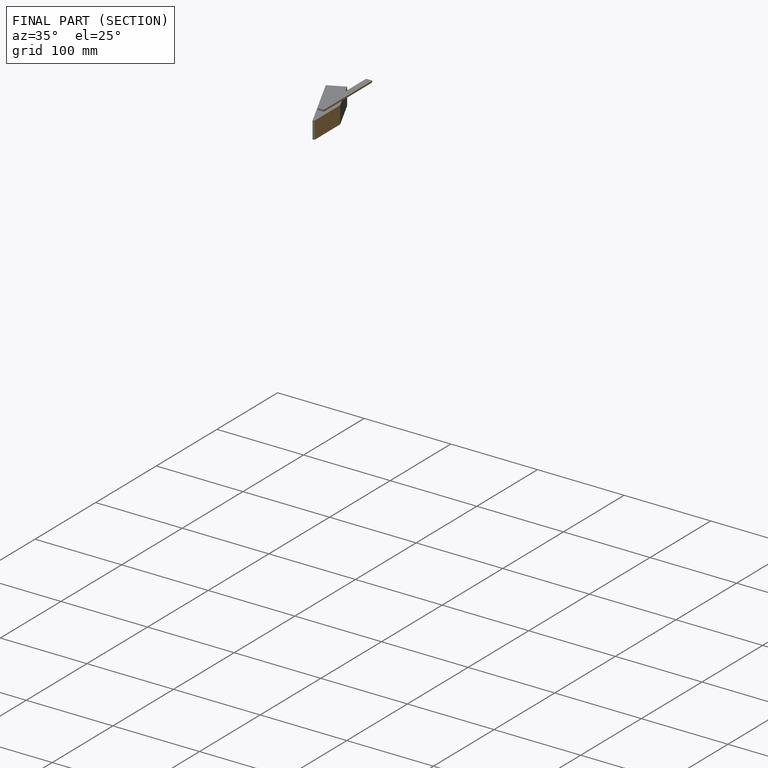
[diagram: finished part — half-section view (interior)]
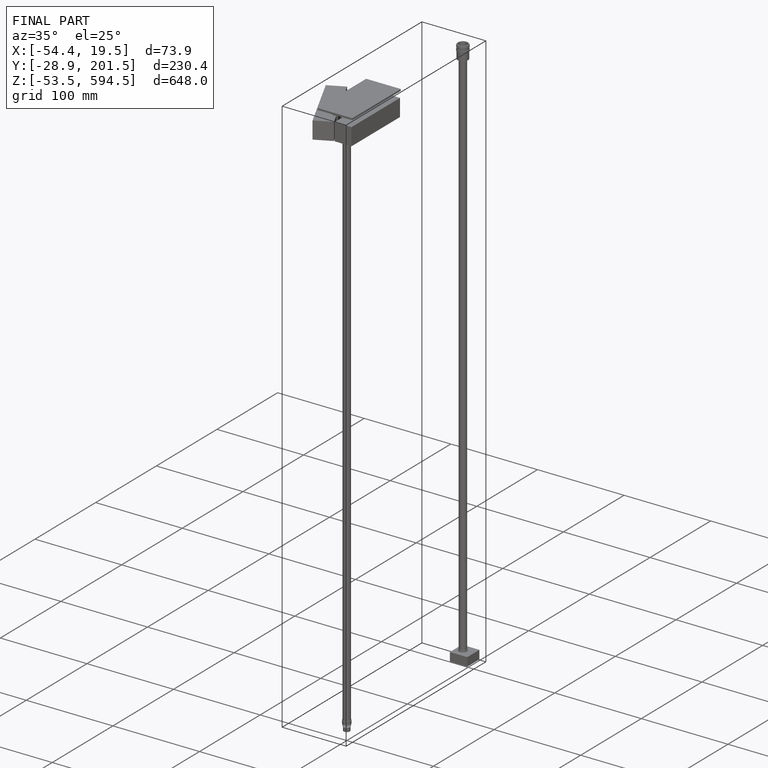
[diagram: finished part — iso view with bounding-box wireframe]
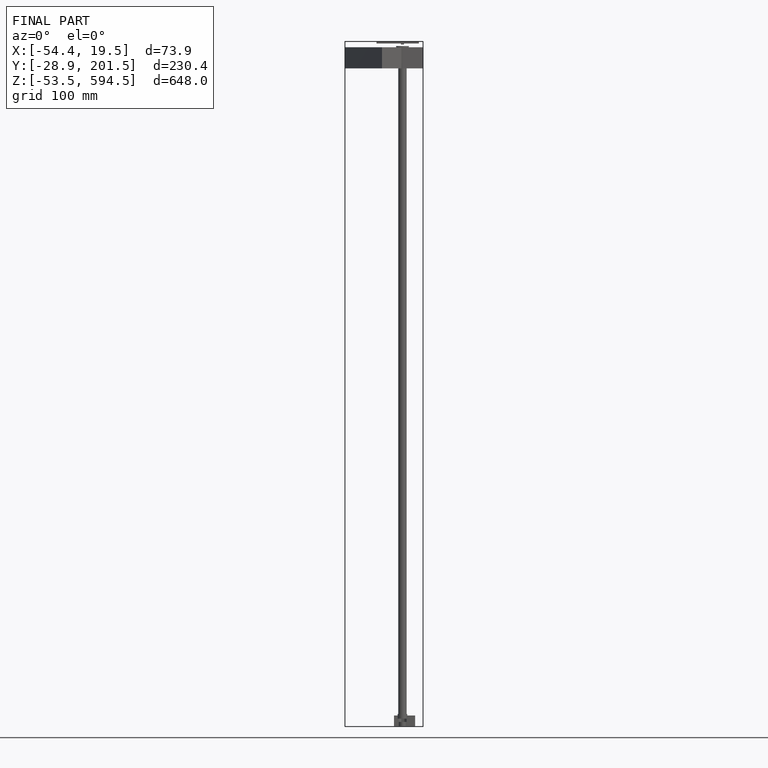
[diagram: finished part — front view with bounding-box wireframe]
